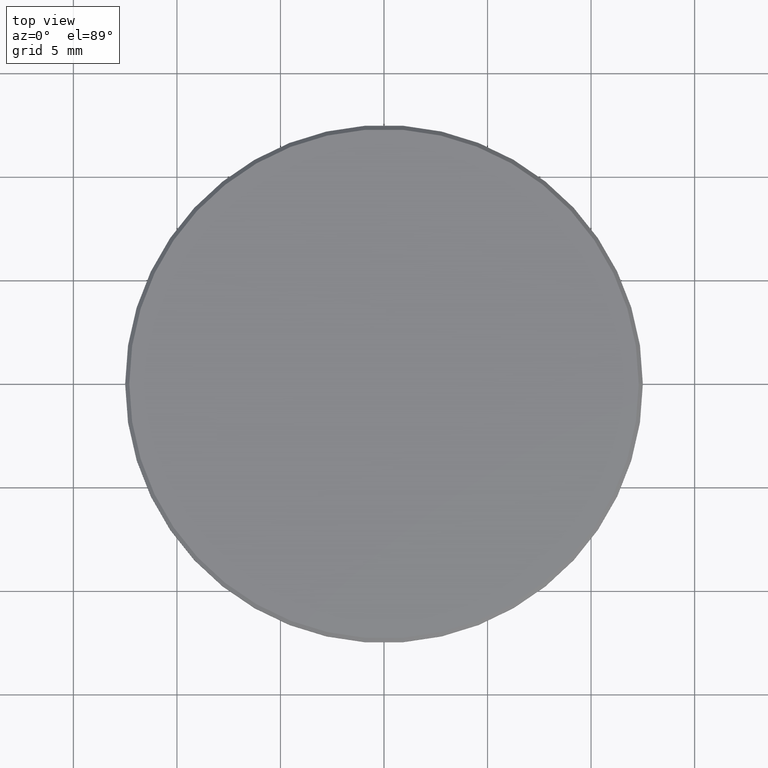
[diagram: clean part render]
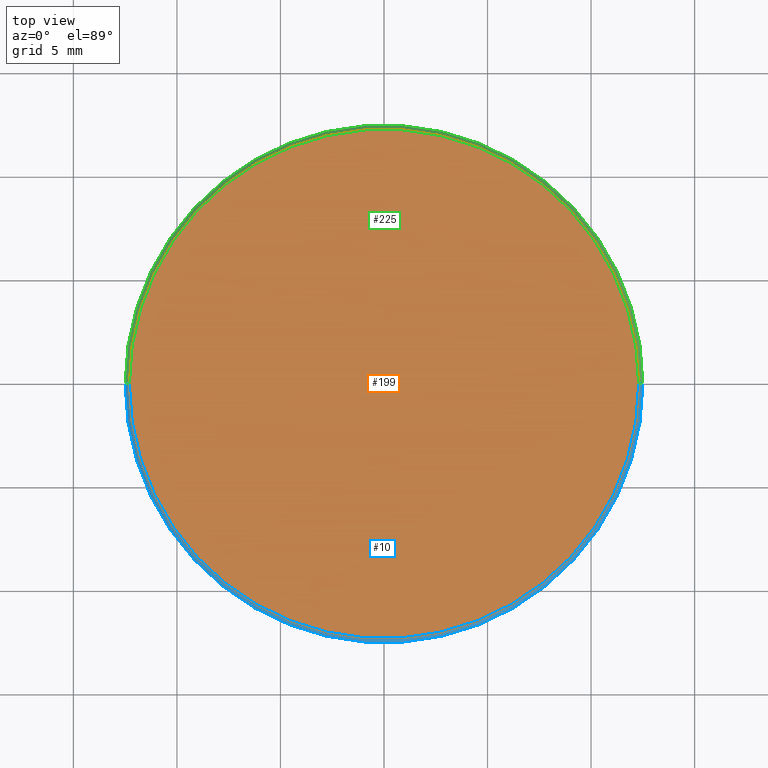
[diagram: same view with three faces highlighted in distinct colors, each labeled with its STEP entity id]
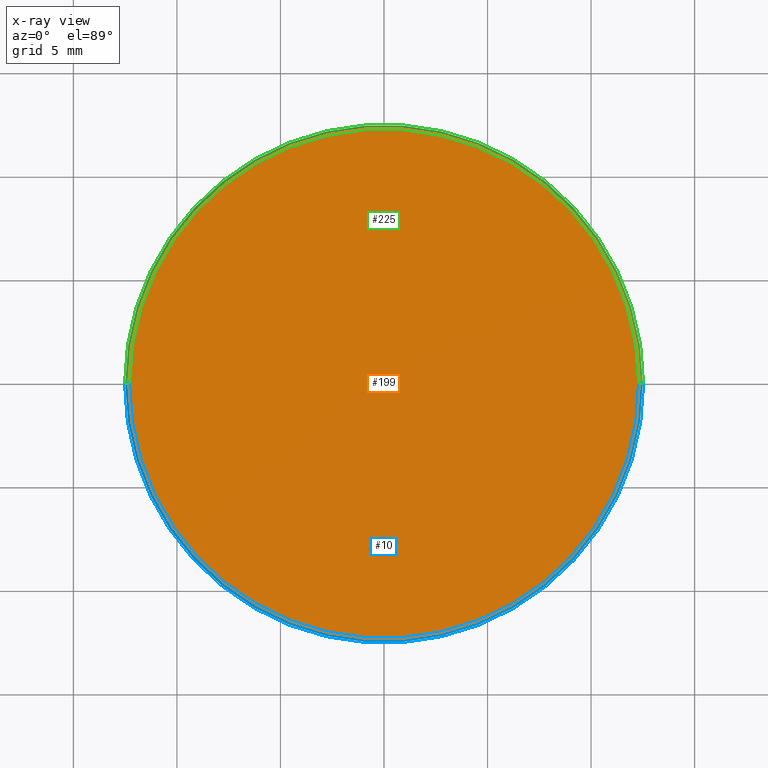
[diagram: x-ray of the same camera — body ghosted, the three highlighted faces saturated]
A machine part, top view with three faces highlighted in distinct colors.
The next image is the same camera in x-ray (body ghosted, the three faces saturated) — at least one of them is partly hidden behind the body in this view.
Their STEP definitions:

[orange] entity #199 — the highlighted planar face has unit normal (0, 0, 1).
#3 = PLANE ( 'NONE',  #133 ) ;
#8 = ORIENTED_EDGE ( 'NONE', *, *, #12, .T. ) ;
#12 = EDGE_CURVE ( 'NONE', #104, #81, #191, .T. ) ;
#18 = CIRCLE ( 'NONE', #52, 12.29999999999999893 ) ;
#21 = EDGE_LOOP ( 'NONE', ( #8, #80 ) ) ;
#24 = FACE_OUTER_BOUND ( 'NONE', #21, .T. ) ;
#52 = AXIS2_PLACEMENT_3D ( 'NONE', #98, #76, #116 ) ;
#61 = AXIS2_PLACEMENT_3D ( 'NONE', #64, #63, #108 ) ;
#63 = DIRECTION ( 'NONE',  ( 0.000000000000000000, 0.000000000000000000, 1.000000000000000000 ) ) ;
#64 = CARTESIAN_POINT ( 'NONE',  ( 0.000000000000000000, 0.000000000000000000, 1.000000000000000000 ) ) ;
#76 = DIRECTION ( 'NONE',  ( 0.000000000000000000, 0.000000000000000000, 1.000000000000000000 ) ) ;
#77 = DIRECTION ( 'NONE',  ( 0.000000000000000000, 0.000000000000000000, 1.000000000000000000 ) ) ;
#80 = ORIENTED_EDGE ( 'NONE', *, *, #155, .T. ) ;
#81 = VERTEX_POINT ( 'NONE', #220 ) ;
#97 = CARTESIAN_POINT ( 'NONE',  ( -12.29999999999999893, 0.000000000000000000, 1.000000000000000000 ) ) ;
#98 = CARTESIAN_POINT ( 'NONE',  ( 0.000000000000000000, 0.000000000000000000, 1.000000000000000000 ) ) ;
#104 = VERTEX_POINT ( 'NONE', #97 ) ;
#108 = DIRECTION ( 'NONE',  ( 1.000000000000000000, 0.000000000000000000, 0.000000000000000000 ) ) ;
#116 = DIRECTION ( 'NONE',  ( 1.000000000000000000, 0.000000000000000000, 0.000000000000000000 ) ) ;
#133 = AXIS2_PLACEMENT_3D ( 'NONE', #209, #77, #230 ) ;
#155 = EDGE_CURVE ( 'NONE', #81, #104, #18, .T. ) ;
#191 = CIRCLE ( 'NONE', #61, 12.29999999999999893 ) ;
#199 = ADVANCED_FACE ( 'NONE', ( #24 ), #3, .T. ) ;
#209 = CARTESIAN_POINT ( 'NONE',  ( 0.000000000000000000, 0.000000000000000000, 1.000000000000000000 ) ) ;
#220 = CARTESIAN_POINT ( 'NONE',  ( 12.29999999999999893, 1.518562030942717967E-15, 1.000000000000000000 ) ) ;
#230 = DIRECTION ( 'NONE',  ( 1.000000000000000000, 0.000000000000000000, -0.000000000000000000 ) ) ;

[blue] entity #10 — the highlighted conical surface has half-angle 45 deg.
#5 = LINE ( 'NONE', #182, #164 ) ;
#10 = ADVANCED_FACE ( 'NONE', ( #82 ), #204, .T. ) ;
#12 = EDGE_CURVE ( 'NONE', #104, #81, #191, .T. ) ;
#22 = DIRECTION ( 'NONE',  ( 0.7071067811865566766, 8.659560562355045024E-17, -0.7071067811865383579 ) ) ;
#27 = DIRECTION ( 'NONE',  ( -0.7071067811865566766, 0.000000000000000000, -0.7071067811865383579 ) ) ;
#31 = EDGE_CURVE ( 'NONE', #33, #44, #195, .T. ) ;
#33 = VERTEX_POINT ( 'NONE', #37 ) ;
#37 = CARTESIAN_POINT ( 'NONE',  ( 12.50000000000000000, 1.530808498934191521E-15, 0.8000000000000029310 ) ) ;
#44 = VERTEX_POINT ( 'NONE', #121 ) ;
#46 = ORIENTED_EDGE ( 'NONE', *, *, #167, .F. ) ;
#48 = ORIENTED_EDGE ( 'NONE', *, *, #123, .T. ) ;
#61 = AXIS2_PLACEMENT_3D ( 'NONE', #64, #63, #108 ) ;
#63 = DIRECTION ( 'NONE',  ( 0.000000000000000000, 0.000000000000000000, 1.000000000000000000 ) ) ;
#64 = CARTESIAN_POINT ( 'NONE',  ( 0.000000000000000000, 0.000000000000000000, 1.000000000000000000 ) ) ;
#69 = DIRECTION ( 'NONE',  ( 0.000000000000000000, 0.000000000000000000, -1.000000000000000000 ) ) ;
#78 = AXIS2_PLACEMENT_3D ( 'NONE', #237, #69, #100 ) ;
#79 = CARTESIAN_POINT ( 'NONE',  ( -12.29999999999999893, 0.000000000000000000, 1.000000000000000000 ) ) ;
#81 = VERTEX_POINT ( 'NONE', #220 ) ;
#82 = FACE_OUTER_BOUND ( 'NONE', #159, .T. ) ;
#97 = CARTESIAN_POINT ( 'NONE',  ( -12.29999999999999893, 0.000000000000000000, 1.000000000000000000 ) ) ;
#100 = DIRECTION ( 'NONE',  ( -1.000000000000000000, 0.000000000000000000, 0.000000000000000000 ) ) ;
#104 = VERTEX_POINT ( 'NONE', #97 ) ;
#108 = DIRECTION ( 'NONE',  ( 1.000000000000000000, 0.000000000000000000, 0.000000000000000000 ) ) ;
#112 = AXIS2_PLACEMENT_3D ( 'NONE', #149, #196, #212 ) ;
#121 = CARTESIAN_POINT ( 'NONE',  ( -12.50000000000000000, 0.000000000000000000, 0.8000000000000029310 ) ) ;
#123 = EDGE_CURVE ( 'NONE', #104, #44, #187, .T. ) ;
#149 = CARTESIAN_POINT ( 'NONE',  ( 0.000000000000000000, 0.000000000000000000, 0.8000000000000029310 ) ) ;
#159 = EDGE_LOOP ( 'NONE', ( #46, #192, #48, #205 ) ) ;
#164 = VECTOR ( 'NONE', #22, 1000.000000000000000 ) ;
#167 = EDGE_CURVE ( 'NONE', #81, #33, #5, .T. ) ;
#182 = CARTESIAN_POINT ( 'NONE',  ( 12.29999999999999893, 1.506315562951244216E-15, 1.000000000000000000 ) ) ;
#187 = LINE ( 'NONE', #79, #222 ) ;
#191 = CIRCLE ( 'NONE', #61, 12.29999999999999893 ) ;
#192 = ORIENTED_EDGE ( 'NONE', *, *, #12, .F. ) ;
#195 = CIRCLE ( 'NONE', #112, 12.50000000000000000 ) ;
#196 = DIRECTION ( 'NONE',  ( 0.000000000000000000, 0.000000000000000000, -1.000000000000000000 ) ) ;
#204 = CONICAL_SURFACE ( 'NONE', #78, 12.29999999999999893, 0.7853981633974612686 ) ;
#205 = ORIENTED_EDGE ( 'NONE', *, *, #31, .F. ) ;
#212 = DIRECTION ( 'NONE',  ( 1.000000000000000000, 0.000000000000000000, 0.000000000000000000 ) ) ;
#220 = CARTESIAN_POINT ( 'NONE',  ( 12.29999999999999893, 1.518562030942717967E-15, 1.000000000000000000 ) ) ;
#222 = VECTOR ( 'NONE', #27, 1000.000000000000000 ) ;
#237 = CARTESIAN_POINT ( 'NONE',  ( 0.000000000000000000, 0.000000000000000000, 1.000000000000000000 ) ) ;

[green] entity #225 — the highlighted conical surface has half-angle 45 deg.
#5 = LINE ( 'NONE', #182, #164 ) ;
#15 = ORIENTED_EDGE ( 'NONE', *, *, #146, .F. ) ;
#18 = CIRCLE ( 'NONE', #52, 12.29999999999999893 ) ;
#22 = DIRECTION ( 'NONE',  ( 0.7071067811865566766, 8.659560562355045024E-17, -0.7071067811865383579 ) ) ;
#27 = DIRECTION ( 'NONE',  ( -0.7071067811865566766, 0.000000000000000000, -0.7071067811865383579 ) ) ;
#33 = VERTEX_POINT ( 'NONE', #37 ) ;
#37 = CARTESIAN_POINT ( 'NONE',  ( 12.50000000000000000, 1.530808498934191521E-15, 0.8000000000000029310 ) ) ;
#38 = CARTESIAN_POINT ( 'NONE',  ( 0.000000000000000000, 0.000000000000000000, 1.000000000000000000 ) ) ;
#42 = DIRECTION ( 'NONE',  ( 0.000000000000000000, 0.000000000000000000, -1.000000000000000000 ) ) ;
#44 = VERTEX_POINT ( 'NONE', #121 ) ;
#52 = AXIS2_PLACEMENT_3D ( 'NONE', #98, #76, #116 ) ;
#59 = CARTESIAN_POINT ( 'NONE',  ( 0.000000000000000000, 0.000000000000000000, 0.8000000000000029310 ) ) ;
#76 = DIRECTION ( 'NONE',  ( 0.000000000000000000, 0.000000000000000000, 1.000000000000000000 ) ) ;
#79 = CARTESIAN_POINT ( 'NONE',  ( -12.29999999999999893, 0.000000000000000000, 1.000000000000000000 ) ) ;
#81 = VERTEX_POINT ( 'NONE', #220 ) ;
#85 = DIRECTION ( 'NONE',  ( -1.000000000000000000, 0.000000000000000000, 0.000000000000000000 ) ) ;
#88 = CIRCLE ( 'NONE', #128, 12.50000000000000000 ) ;
#95 = CONICAL_SURFACE ( 'NONE', #107, 12.29999999999999893, 0.7853981633974612686 ) ;
#97 = CARTESIAN_POINT ( 'NONE',  ( -12.29999999999999893, 0.000000000000000000, 1.000000000000000000 ) ) ;
#98 = CARTESIAN_POINT ( 'NONE',  ( 0.000000000000000000, 0.000000000000000000, 1.000000000000000000 ) ) ;
#104 = VERTEX_POINT ( 'NONE', #97 ) ;
#105 = ORIENTED_EDGE ( 'NONE', *, *, #155, .F. ) ;
#107 = AXIS2_PLACEMENT_3D ( 'NONE', #38, #169, #85 ) ;
#116 = DIRECTION ( 'NONE',  ( 1.000000000000000000, 0.000000000000000000, 0.000000000000000000 ) ) ;
#121 = CARTESIAN_POINT ( 'NONE',  ( -12.50000000000000000, 0.000000000000000000, 0.8000000000000029310 ) ) ;
#123 = EDGE_CURVE ( 'NONE', #104, #44, #187, .T. ) ;
#125 = ORIENTED_EDGE ( 'NONE', *, *, #123, .F. ) ;
#126 = FACE_OUTER_BOUND ( 'NONE', #177, .T. ) ;
#128 = AXIS2_PLACEMENT_3D ( 'NONE', #59, #42, #154 ) ;
#146 = EDGE_CURVE ( 'NONE', #44, #33, #88, .T. ) ;
#147 = ORIENTED_EDGE ( 'NONE', *, *, #167, .T. ) ;
#154 = DIRECTION ( 'NONE',  ( 1.000000000000000000, 0.000000000000000000, 0.000000000000000000 ) ) ;
#155 = EDGE_CURVE ( 'NONE', #81, #104, #18, .T. ) ;
#164 = VECTOR ( 'NONE', #22, 1000.000000000000000 ) ;
#167 = EDGE_CURVE ( 'NONE', #81, #33, #5, .T. ) ;
#169 = DIRECTION ( 'NONE',  ( 0.000000000000000000, 0.000000000000000000, -1.000000000000000000 ) ) ;
#177 = EDGE_LOOP ( 'NONE', ( #105, #147, #15, #125 ) ) ;
#182 = CARTESIAN_POINT ( 'NONE',  ( 12.29999999999999893, 1.506315562951244216E-15, 1.000000000000000000 ) ) ;
#187 = LINE ( 'NONE', #79, #222 ) ;
#220 = CARTESIAN_POINT ( 'NONE',  ( 12.29999999999999893, 1.518562030942717967E-15, 1.000000000000000000 ) ) ;
#222 = VECTOR ( 'NONE', #27, 1000.000000000000000 ) ;
#225 = ADVANCED_FACE ( 'NONE', ( #126 ), #95, .T. ) ;